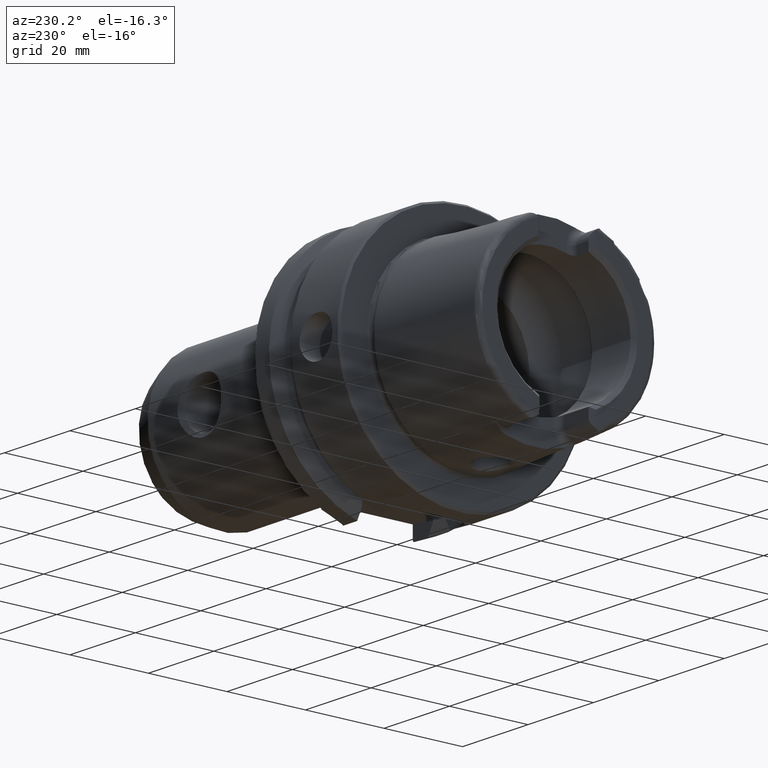
[diagram: clean part render]
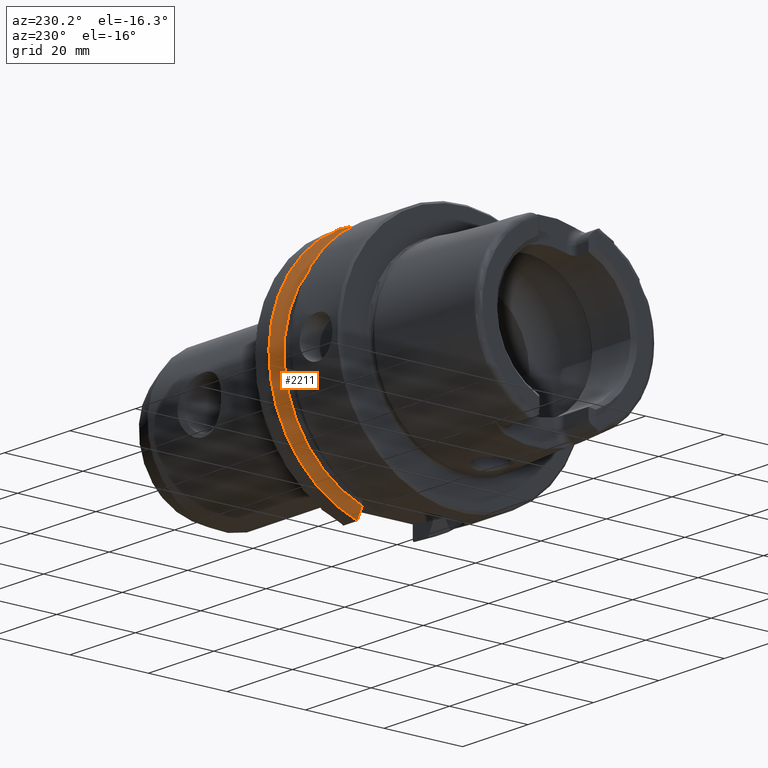
[diagram: same view with one face highlighted and labeled with its STEP entity id]
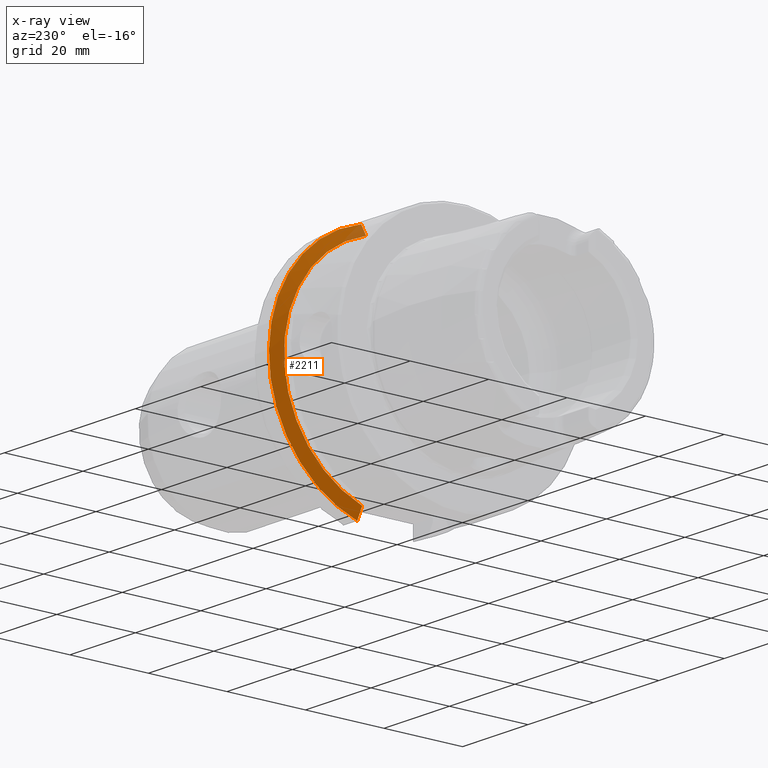
[diagram: x-ray of the same camera — body ghosted, the highlighted face saturated]
A machine part, auxiliary view. The second image highlights one B-rep face of the part: STEP entity #2211.
The next image is the same camera in x-ray: the body ghosted, the highlighted face saturated — about 3% of this face is hidden behind the body in this view.
In plain terms, the highlighted conical surface has half-angle 60 deg.
Its self-contained STEP definition (entity closure, byte-faithful):
#29=(
BOUNDED_CURVE()
B_SPLINE_CURVE(2,(#4597,#4598,#4599),.UNSPECIFIED.,.F.,.F.)
B_SPLINE_CURVE_WITH_KNOTS((3,3),(0.,0.311314369989023),.UNSPECIFIED.)
CURVE()
GEOMETRIC_REPRESENTATION_ITEM()
RATIONAL_B_SPLINE_CURVE((1.,1.00102053193238,1.))
REPRESENTATION_ITEM('')
);
#32=(
BOUNDED_CURVE()
B_SPLINE_CURVE(2,(#4742,#4743,#4744),.UNSPECIFIED.,.F.,.F.)
B_SPLINE_CURVE_WITH_KNOTS((3,3),(0.,0.308905667770379),.UNSPECIFIED.)
CURVE()
GEOMETRIC_REPRESENTATION_ITEM()
RATIONAL_B_SPLINE_CURVE((1.,1.00099999355179,1.))
REPRESENTATION_ITEM('')
);
#319=FACE_OUTER_BOUND('',#462,.T.);
#462=EDGE_LOOP('',(#1918,#1919,#1920,#1921));
#825=CIRCLE('',#2460,31.5);
#826=CIRCLE('',#2462,28.8975952641916);
#1043=VERTEX_POINT('',#4594);
#1044=VERTEX_POINT('',#4596);
#1061=VERTEX_POINT('',#4739);
#1062=VERTEX_POINT('',#4741);
#1325=EDGE_CURVE('',#1044,#1043,#29,.T.);
#1356=EDGE_CURVE('',#1062,#1061,#32,.T.);
#1366=EDGE_CURVE('',#1044,#1061,#825,.T.);
#1367=EDGE_CURVE('',#1043,#1062,#826,.T.);
#1918=ORIENTED_EDGE('',*,*,#1325,.T.);
#1919=ORIENTED_EDGE('',*,*,#1367,.T.);
#1920=ORIENTED_EDGE('',*,*,#1356,.T.);
#1921=ORIENTED_EDGE('',*,*,#1366,.F.);
#2117=CONICAL_SURFACE('',#2461,30.1987976320958,1.0471975511966);
#2211=ADVANCED_FACE('',(#319),#2117,.T.);
#2460=AXIS2_PLACEMENT_3D('',#4773,#3017,#3018);
#2461=AXIS2_PLACEMENT_3D('',#4774,#3019,#3020);
#2462=AXIS2_PLACEMENT_3D('',#4775,#3021,#3022);
#3017=DIRECTION('center_axis',(1.,0.,0.));
#3018=DIRECTION('ref_axis',(0.,0.,-1.));
#3019=DIRECTION('center_axis',(1.,0.,0.));
#3020=DIRECTION('ref_axis',(0.,1.,0.));
#3021=DIRECTION('center_axis',(1.,0.,0.));
#3022=DIRECTION('ref_axis',(0.,0.,-1.));
#4594=CARTESIAN_POINT('',(19.875,9.,-27.4603534582684));
#4596=CARTESIAN_POINT('',(21.3774990747593,9.,-30.1869176962472));
#4597=CARTESIAN_POINT('Ctrl Pts',(21.3774990747593,9.,-30.1869176962472));
#4598=CARTESIAN_POINT('Ctrl Pts',(20.5907174110267,9.,-28.7648946319029));
#4599=CARTESIAN_POINT('Ctrl Pts',(19.875,9.,-27.4603534582684));
#4739=CARTESIAN_POINT('',(21.3774990747593,8.,30.4671954731642));
#4741=CARTESIAN_POINT('',(19.875,8.,27.7681654426977));
#4742=CARTESIAN_POINT('Ctrl Pts',(19.875,8.,27.7681654426977));
#4743=CARTESIAN_POINT('Ctrl Pts',(20.5914314297926,8.,29.0595327079868));
#4744=CARTESIAN_POINT('Ctrl Pts',(21.3774990747593,8.,30.4671954731642));
#4773=CARTESIAN_POINT('Origin',(21.3774990747593,0.,0.));
#4774=CARTESIAN_POINT('Origin',(20.6262495373797,0.,0.));
#4775=CARTESIAN_POINT('Origin',(19.875,0.,0.));